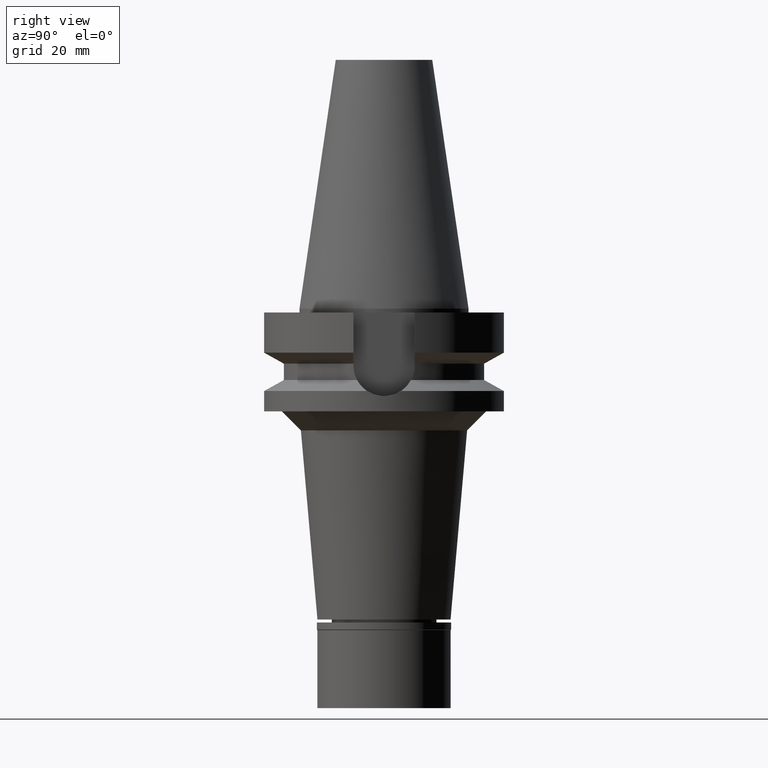
[diagram: clean part render]
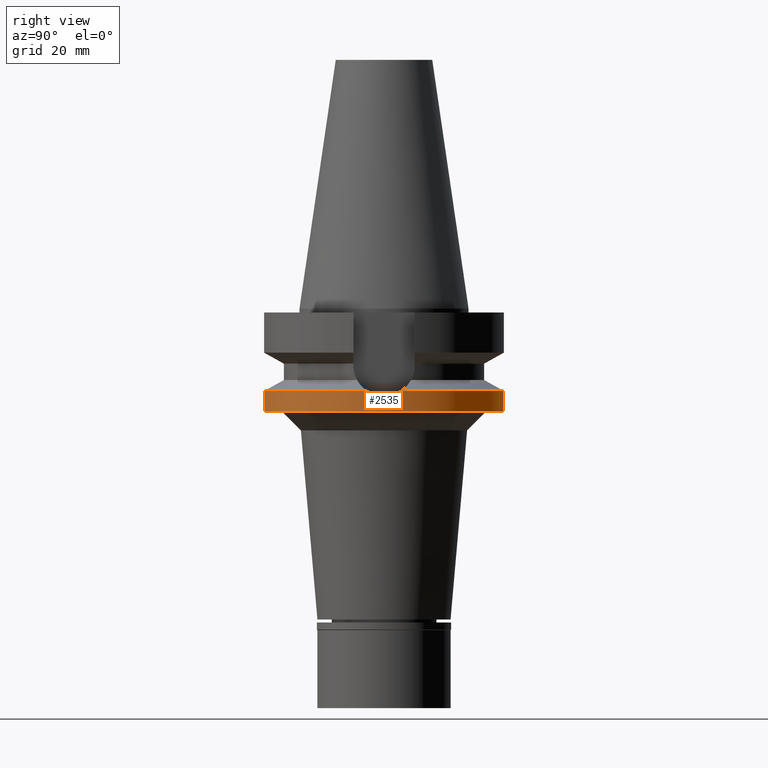
[diagram: same view with one face highlighted and labeled with its STEP entity id]
A machine part, right view. The second image highlights one B-rep face of the part: STEP entity #2535.
In plain terms, the highlighted cylindrical surface (partial cylindrical patch) has radius 31.5 mm, axis along (0, 0, -1).
Its self-contained STEP definition (entity closure, byte-faithful):
#33 = AXIS2_PLACEMENT_3D ( 'NONE', #1178, #3118, #450 ) ;
#82 = CARTESIAN_POINT ( 'NONE',  ( 31.41697254242929205, 2.284015593780573727, -22.66919255136408395 ) ) ;
#86 = AXIS2_PLACEMENT_3D ( 'NONE', #206, #1883, #1184 ) ;
#92 = CARTESIAN_POINT ( 'NONE',  ( 31.41183231690596855, -2.353663757155681768, -22.64823938059620545 ) ) ;
#104 = CARTESIAN_POINT ( 'NONE',  ( 31.38993145521942196, -2.631335983111909194, -22.55874663190329699 ) ) ;
#137 = EDGE_CURVE ( 'NONE', #3018, #1721, #1502, .T. ) ;
#190 = DIRECTION ( 'NONE',  ( 0.9898094849552905306, -0.1423979757318985240, 0.0000000000000000000 ) ) ;
#206 = CARTESIAN_POINT ( 'NONE',  ( 0.0000000000000000000, 0.0000000000000000000, -21.63449434733000132 ) ) ;
#307 = CARTESIAN_POINT ( 'NONE',  ( 31.47113333814916558, 1.356640495464844109, -22.88731189956133960 ) ) ;
#317 = EDGE_CURVE ( 'NONE', #747, #3018, #1454, .T. ) ;
#366 = DIRECTION ( 'NONE',  ( 0.0000000000000000000, -1.000000000000000000, 0.0000000000000000000 ) ) ;
#428 = ORIENTED_EDGE ( 'NONE', *, *, #1665, .F. ) ;
#450 = DIRECTION ( 'NONE',  ( 0.0000000000000000000, -1.000000000000000000, 0.0000000000000000000 ) ) ;
#519 = CARTESIAN_POINT ( 'NONE',  ( 31.44587474454343123, 1.845305156204674057, -22.78628520795651013 ) ) ;
#536 = ORIENTED_EDGE ( 'NONE', *, *, #678, .T. ) ;
#541 = ORIENTED_EDGE ( 'NONE', *, *, #1885, .T. ) ;
#594 = CARTESIAN_POINT ( 'NONE',  ( 31.40205153632035717, -2.481143929229181921, -22.60832449609155148 ) ) ;
#610 = CARTESIAN_POINT ( 'NONE',  ( 31.50000030226999570, 4.149986401503999830E-14, -23.00000138148999795 ) ) ;
#616 = CARTESIAN_POINT ( 'NONE',  ( 0.0000000000000000000, -31.50000000000000000, -21.63449434733000132 ) ) ;
#675 = CARTESIAN_POINT ( 'NONE',  ( 31.17899877608999759, 4.485536235554000051, -21.63449434733000132 ) ) ;
#678 = EDGE_CURVE ( 'NONE', #1089, #1437, #2327, .T. ) ;
#744 = EDGE_CURVE ( 'NONE', #2497, #1437, #2634, .T. ) ;
#747 = VERTEX_POINT ( 'NONE', #1478 ) ;
#797 = CARTESIAN_POINT ( 'NONE',  ( 0.0000000000000000000, 2.125803146300000032E-14, -27.00000000000000000 ) ) ;
#830 = CARTESIAN_POINT ( 'NONE',  ( 31.35450367999056809, -3.025551444408663748, -22.41216023105940991 ) ) ;
#869 = CARTESIAN_POINT ( 'NONE',  ( 31.40782472142095827, -2.406637570808294768, -22.63189169567762704 ) ) ;
#885 = CARTESIAN_POINT ( 'NONE',  ( 31.33671814113429122, -3.204274407606030550, -22.33747821317260573 ) ) ;
#962 = ORIENTED_EDGE ( 'NONE', *, *, #137, .T. ) ;
#979 = EDGE_LOOP ( 'NONE', ( #3032, #962, #541, #428, #536, #1028, #1222 ) ) ;
#1007 = CARTESIAN_POINT ( 'NONE',  ( 31.49278356123977929, 0.7711873031710440030, -22.97267690006522400 ) ) ;
#1028 = ORIENTED_EDGE ( 'NONE', *, *, #744, .F. ) ;
#1061 = CARTESIAN_POINT ( 'NONE',  ( 31.41519654756639568, 2.308329250097893581, -22.66195675239495699 ) ) ;
#1069 = CARTESIAN_POINT ( 'NONE',  ( 31.50000030227000636, -0.7652255575728066361, -23.00000000000000711 ) ) ;
#1089 = VERTEX_POINT ( 'NONE', #1511 ) ;
#1178 = CARTESIAN_POINT ( 'NONE',  ( 0.0000000000000000000, 2.125803146300000032E-14, 73.58499999999999375 ) ) ;
#1184 = DIRECTION ( 'NONE',  ( 0.0000000000000000000, 1.000000000000000000, 0.0000000000000000000 ) ) ;
#1222 = ORIENTED_EDGE ( 'NONE', *, *, #1764, .F. ) ;
#1287 = CARTESIAN_POINT ( 'NONE',  ( 31.42563404118526549, 2.162357063185814887, -22.70443063270441897 ) ) ;
#1336 = DIRECTION ( 'NONE',  ( 0.0000000000000000000, 0.0000000000000000000, 1.000000000000000000 ) ) ;
#1344 = CARTESIAN_POINT ( 'NONE',  ( 0.0000000000000000000, -31.50000000000000000, -27.00000000000000000 ) ) ;
#1348 = VERTEX_POINT ( 'NONE', #2136 ) ;
#1411 = FACE_OUTER_BOUND ( 'NONE', #979, .T. ) ;
#1437 = VERTEX_POINT ( 'NONE', #675 ) ;
#1454 = CIRCLE ( 'NONE', #2637, 31.50000000000001421 ) ;
#1478 = CARTESIAN_POINT ( 'NONE',  ( 31.17899877608999759, -4.485536235554000051, -21.63449434733000132 ) ) ;
#1493 = B_SPLINE_CURVE_WITH_KNOTS ( 'NONE', 3,
 ( #1812, #1547, #2533, #885, #830, #1774, #104, #594, #869, #1608, #92, #1559, #2546, #1069, #610 ),
 .UNSPECIFIED., .F., .F.,
 ( 4, 2, 2, 1, 1, 1, 2, 2, 4 ),
 ( 0.0000000000000000000, 0.2500000000000082712, 0.3750000000000119349, 0.4375000000000139888, 0.4687500000000150990, 0.4843750000000152101, 0.4921875000000149880, 0.5000000000000147660, 1.000000000000000000 ),
 .UNSPECIFIED. ) ;
#1502 = LINE ( 'NONE', #616, #1548 ) ;
#1511 = CARTESIAN_POINT ( 'NONE',  ( 0.0000000000000000000, 31.50000000000000000, -21.63449434733000132 ) ) ;
#1524 = CARTESIAN_POINT ( 'NONE',  ( 31.50000030226999570, 4.149986401503999830E-14, -23.00000138148999795 ) ) ;
#1547 = CARTESIAN_POINT ( 'NONE',  ( 31.23205437646064198, -4.116746326781118626, -21.88196564630578678 ) ) ;
#1548 = VECTOR ( 'NONE', #2703, 1000.000000000000000 ) ;
#1559 = CARTESIAN_POINT ( 'NONE',  ( 31.41250465254752910, -2.344685119767524029, -22.65098129005167849 ) ) ;
#1608 = CARTESIAN_POINT ( 'NONE',  ( 31.41023747458196524, -2.374835805101922048, -22.64173436498663605 ) ) ;
#1624 = DIRECTION ( 'NONE',  ( 0.0000000000000000000, 0.0000000000000000000, -1.000000000000000000 ) ) ;
#1665 = EDGE_CURVE ( 'NONE', #1089, #1348, #2336, .T. ) ;
#1715 = CARTESIAN_POINT ( 'NONE',  ( 31.36324472125325613, 3.008186402923568981, -22.45010119757649392 ) ) ;
#1721 = VERTEX_POINT ( 'NONE', #1344 ) ;
#1763 = CARTESIAN_POINT ( 'NONE',  ( 31.46211241186140128, 1.552211430364588640, -22.85146869861923236 ) ) ;
#1764 = EDGE_CURVE ( 'NONE', #747, #2497, #1493, .T. ) ;
#1774 = CARTESIAN_POINT ( 'NONE',  ( 31.37855930987626252, -2.761990093459803397, -22.51192666837109257 ) ) ;
#1793 = CARTESIAN_POINT ( 'NONE',  ( 0.0000000000000000000, 31.50000000000000000, -21.63449434733000132 ) ) ;
#1812 = CARTESIAN_POINT ( 'NONE',  ( 31.17899877608999759, -4.485536235554000051, -21.63449434733000132 ) ) ;
#1856 = CARTESIAN_POINT ( 'NONE',  ( 0.0000000000000000000, -31.50000000000000000, -21.63449434733000132 ) ) ;
#1883 = DIRECTION ( 'NONE',  ( 0.0000000000000000000, 0.0000000000000000000, -1.000000000000000000 ) ) ;
#1885 = EDGE_CURVE ( 'NONE', #1721, #1348, #2628, .T. ) ;
#1974 = CARTESIAN_POINT ( 'NONE',  ( 31.28511117664742969, 3.747948078124208049, -22.12944254164047564 ) ) ;
#2021 = CARTESIAN_POINT ( 'NONE',  ( 31.41418307691772682, 2.322078179488806793, -22.65782554032157137 ) ) ;
#2052 = AXIS2_PLACEMENT_3D ( 'NONE', #797, #1336, #366 ) ;
#2101 = VECTOR ( 'NONE', #2602, 1000.000000000000000 ) ;
#2136 = CARTESIAN_POINT ( 'NONE',  ( 0.0000000000000000000, 31.50000000000000000, -27.00000000000000000 ) ) ;
#2254 = CARTESIAN_POINT ( 'NONE',  ( 31.41961539192766040, 2.247536052661643691, -22.67995511561548838 ) ) ;
#2327 = CIRCLE ( 'NONE', #86, 31.50000000000000000 ) ;
#2336 = LINE ( 'NONE', #1793, #2101 ) ;
#2497 = VERTEX_POINT ( 'NONE', #2893 ) ;
#2499 = CARTESIAN_POINT ( 'NONE',  ( 31.43707934141286842, 1.991785373593337960, -22.75083980001243589 ) ) ;
#2533 = CARTESIAN_POINT ( 'NONE',  ( 31.27811616776804371, -3.746663410109808190, -22.08609477296228008 ) ) ;
#2535 = ADVANCED_FACE ( 'NONE', ( #1411 ), #2649, .T. ) ;
#2546 = CARTESIAN_POINT ( 'NONE',  ( 31.47113575803166796, -1.554964651851641122, -22.89006402801781093 ) ) ;
#2602 = DIRECTION ( 'NONE',  ( 0.0000000000000000000, 1.099151708819000049E-13, -1.000000000000000000 ) ) ;
#2628 = CIRCLE ( 'NONE', #2052, 31.50000000000000000 ) ;
#2634 = B_SPLINE_CURVE_WITH_KNOTS ( 'NONE', 3,
 ( #1524, #2954, #1007, #307, #1763, #519, #2499, #1287, #2254, #82, #1061, #2021, #1715, #1974, #3007 ),
 .UNSPECIFIED., .F., .F.,
 ( 4, 2, 2, 1, 1, 1, 2, 2, 4 ),
 ( 0.0000000000000000000, 0.2500000000000036637, 0.3750000000000054401, 0.4375000000000063283, 0.4687500000000066613, 0.4843750000000069389, 0.4921875000000072164, 0.5000000000000074385, 1.000000000000000000 ),
 .UNSPECIFIED. ) ;
#2637 = AXIS2_PLACEMENT_3D ( 'NONE', #2824, #1624, #190 ) ;
#2649 = CYLINDRICAL_SURFACE ( 'NONE', #33, 31.50000000000000000 ) ;
#2703 = DIRECTION ( 'NONE',  ( 0.0000000000000000000, -1.105773104655000034E-13, -1.000000000000000000 ) ) ;
#2824 = CARTESIAN_POINT ( 'NONE',  ( 0.0000000000000000000, 0.0000000000000000000, -21.63449434733000132 ) ) ;
#2893 = CARTESIAN_POINT ( 'NONE',  ( 31.50000030226999570, 4.149986401503999830E-14, -23.00000138148999795 ) ) ;
#2954 = CARTESIAN_POINT ( 'NONE',  ( 31.50000030226998859, 0.3826090915251830205, -23.00000000000000000 ) ) ;
#3007 = CARTESIAN_POINT ( 'NONE',  ( 31.17899877608999759, 4.485536235554000051, -21.63449434733000132 ) ) ;
#3018 = VERTEX_POINT ( 'NONE', #1856 ) ;
#3032 = ORIENTED_EDGE ( 'NONE', *, *, #317, .T. ) ;
#3118 = DIRECTION ( 'NONE',  ( 0.0000000000000000000, 0.0000000000000000000, -1.000000000000000000 ) ) ;